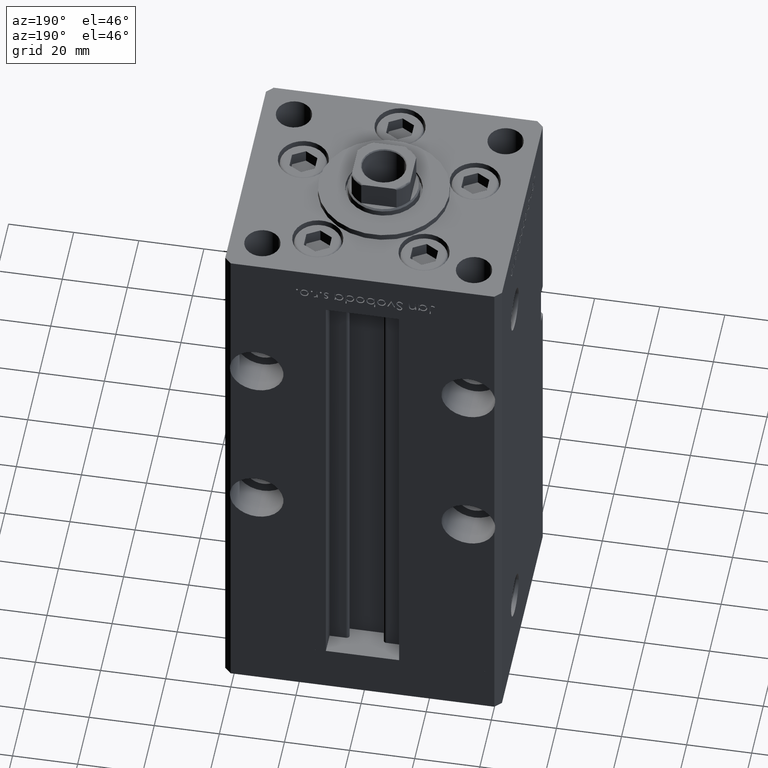
[diagram: clean part render]
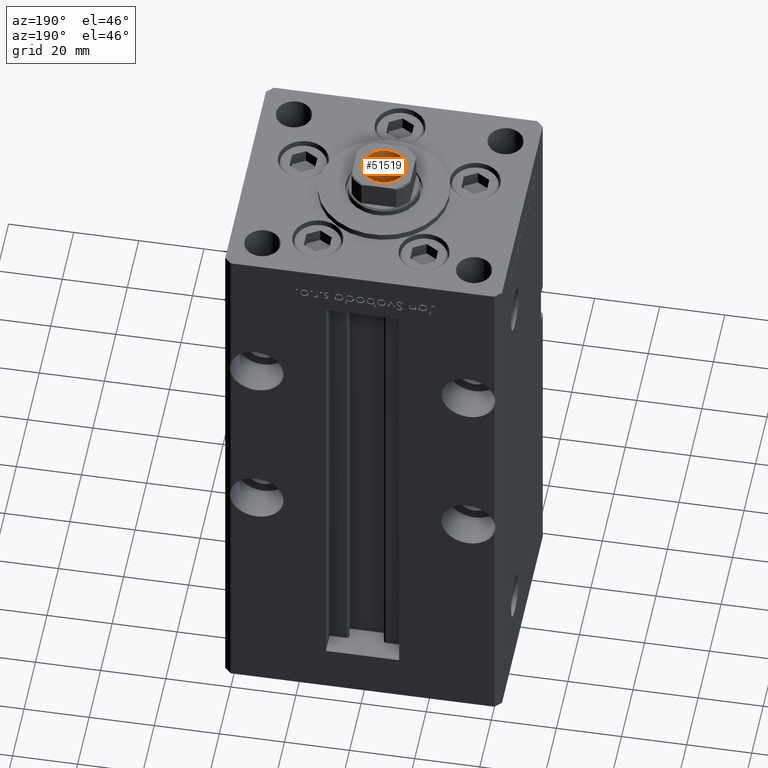
[diagram: same view with one face highlighted and labeled with its STEP entity id]
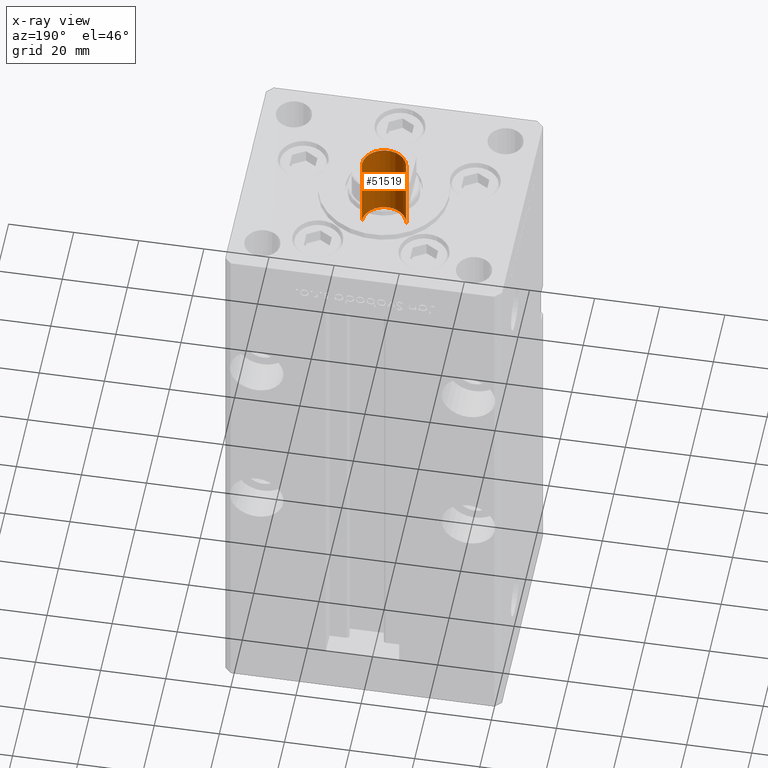
[diagram: x-ray of the same camera — body ghosted, the highlighted face saturated]
A machine part, auxiliary view. The second image highlights one B-rep face of the part: STEP entity #51519.
The next image is the same camera in x-ray: the body ghosted, the highlighted face saturated — about 0% of this face is hidden behind the body in this view.
In plain terms, the highlighted cylindrical surface (edge-blend (fillet) strip) has radius 6.75 mm, axis along (0, 0, 1).
Its self-contained STEP definition (entity closure, byte-faithful):
#2211 = CARTESIAN_POINT ( 'NONE',  ( 6.749999999999993783, 0.000000000000000000, 130.7500000000000000 ) ) ;
#2577 = CARTESIAN_POINT ( 'NONE',  ( 6.749999999999995559, 0.000000000000000000, 155.4499999999999886 ) ) ;
#2678 = DIRECTION ( 'NONE',  ( 1.000000000000000000, 0.000000000000000000, 0.000000000000000000 ) ) ;
#2816 = ORIENTED_EDGE ( 'NONE', *, *, #27068, .F. ) ;
#5067 = EDGE_CURVE ( 'NONE', #13438, #20921, #52571, .T. ) ;
#5565 = VERTEX_POINT ( 'NONE', #2211 ) ;
#5615 = DIRECTION ( 'NONE',  ( 1.000000000000000000, 0.000000000000000000, 0.000000000000000000 ) ) ;
#5956 = ORIENTED_EDGE ( 'NONE', *, *, #22468, .T. ) ;
#6452 = CARTESIAN_POINT ( 'NONE',  ( 0.000000000000000000, 0.000000000000000000, 130.7500000000000000 ) ) ;
#9912 = CARTESIAN_POINT ( 'NONE',  ( 0.000000000000000000, 0.000000000000000000, 155.7500000000000000 ) ) ;
#11002 = AXIS2_PLACEMENT_3D ( 'NONE', #44823, #20348, #28951 ) ;
#11196 = DIRECTION ( 'NONE',  ( -0.000000000000000000, -0.000000000000000000, 1.000000000000000000 ) ) ;
#13438 = VERTEX_POINT ( 'NONE', #49607 ) ;
#13756 = EDGE_CURVE ( 'NONE', #5565, #16746, #37162, .T. ) ;
#16746 = VERTEX_POINT ( 'NONE', #2577 ) ;
#17953 = CYLINDRICAL_SURFACE ( 'NONE', #32179, 6.749999999999995559 ) ;
#18934 = EDGE_LOOP ( 'NONE', ( #2816, #43592, #5956, #51970 ) ) ;
#20348 = DIRECTION ( 'NONE',  ( 0.000000000000000000, 0.000000000000000000, 1.000000000000000000 ) ) ;
#20406 = CIRCLE ( 'NONE', #11002, 6.749999999999995559 ) ;
#20921 = VERTEX_POINT ( 'NONE', #30127 ) ;
#21624 = VECTOR ( 'NONE', #11196, 1000.000000000000000 ) ;
#22468 = EDGE_CURVE ( 'NONE', #20921, #16746, #20406, .T. ) ;
#24356 = VECTOR ( 'NONE', #28581, 1000.000000000000000 ) ;
#27068 = EDGE_CURVE ( 'NONE', #13438, #5565, #47084, .T. ) ;
#28581 = DIRECTION ( 'NONE',  ( -0.000000000000000000, -0.000000000000000000, 1.000000000000000000 ) ) ;
#28951 = DIRECTION ( 'NONE',  ( 1.000000000000000000, 0.000000000000000000, 0.000000000000000000 ) ) ;
#30127 = CARTESIAN_POINT ( 'NONE',  ( -6.749999999999995559, 8.266365894244628417E-16, 155.4499999999999886 ) ) ;
#32179 = AXIS2_PLACEMENT_3D ( 'NONE', #9912, #42424, #5615 ) ;
#37162 = LINE ( 'NONE', #40663, #24356 ) ;
#37625 = AXIS2_PLACEMENT_3D ( 'NONE', #6452, #43537, #2678 ) ;
#40663 = CARTESIAN_POINT ( 'NONE',  ( 6.749999999999995559, 0.000000000000000000, 155.7500000000000000 ) ) ;
#42424 = DIRECTION ( 'NONE',  ( -0.000000000000000000, -0.000000000000000000, 1.000000000000000000 ) ) ;
#42956 = FACE_OUTER_BOUND ( 'NONE', #18934, .T. ) ;
#43537 = DIRECTION ( 'NONE',  ( -0.000000000000000000, -0.000000000000000000, 1.000000000000000000 ) ) ;
#43592 = ORIENTED_EDGE ( 'NONE', *, *, #5067, .T. ) ;
#44823 = CARTESIAN_POINT ( 'NONE',  ( 0.000000000000000000, 0.000000000000000000, 155.4499999999999886 ) ) ;
#47084 = CIRCLE ( 'NONE', #37625, 6.749999999999993783 ) ;
#48279 = CARTESIAN_POINT ( 'NONE',  ( -6.749999999999995559, 8.266365894244628417E-16, 155.7500000000000000 ) ) ;
#49607 = CARTESIAN_POINT ( 'NONE',  ( -6.749999999999993783, 8.266365894244626445E-16, 130.7500000000000000 ) ) ;
#51519 = ADVANCED_FACE ( 'NONE', ( #42956 ), #17953, .F. ) ;
#51970 = ORIENTED_EDGE ( 'NONE', *, *, #13756, .F. ) ;
#52571 = LINE ( 'NONE', #48279, #21624 ) ;